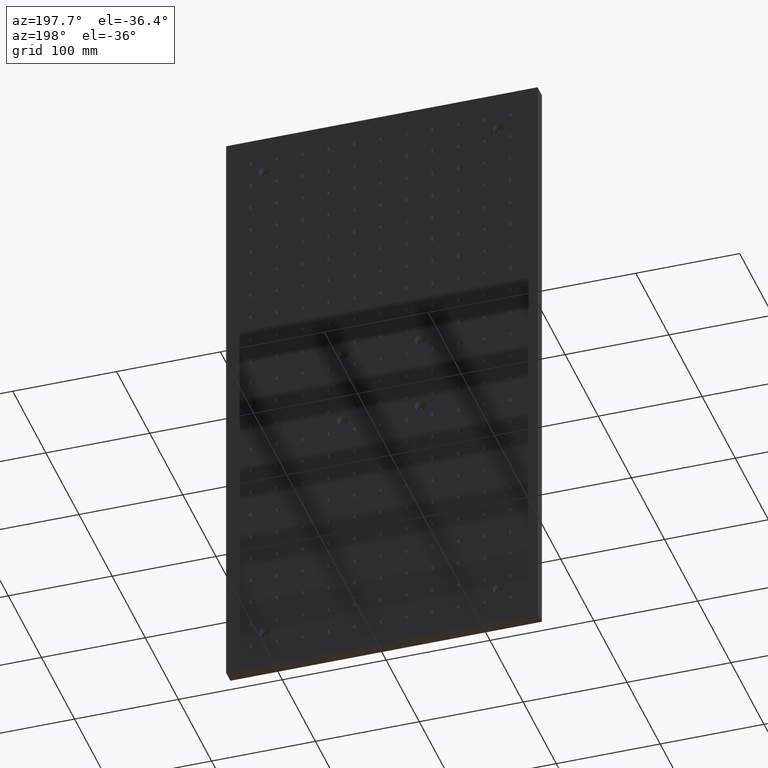
[diagram: clean part render]
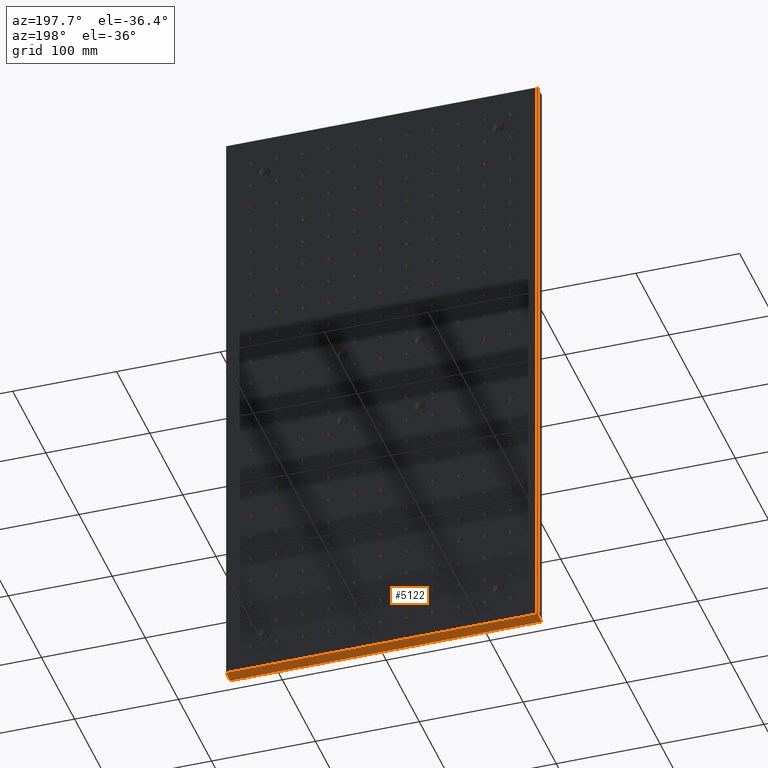
[diagram: same view with one face highlighted and labeled with its STEP entity id]
A machine part, auxiliary view. The second image highlights one B-rep face of the part: STEP entity #5122.
In plain terms, the highlighted planar face has unit normal (0, 0, 1).
Its self-contained STEP definition (entity closure, byte-faithful):
#36 = VERTEX_POINT ( 'NONE', #3815 ) ;
#378 = DIRECTION ( 'NONE',  ( 1.000000000000000000, 0.000000000000000000, -0.000000000000000000 ) ) ;
#485 = VECTOR ( 'NONE', #2688, 1000.000000000000000 ) ;
#760 = EDGE_CURVE ( 'NONE', #36, #8420, #6345, .T. ) ;
#965 = DIRECTION ( 'NONE',  ( -1.000000000000000000, -0.000000000000000000, 0.000000000000000000 ) ) ;
#1807 = FACE_OUTER_BOUND ( 'NONE', #8062, .T. ) ;
#2195 = EDGE_CURVE ( 'NONE', #8420, #3244, #4023, .T. ) ;
#2633 = LINE ( 'NONE', #3963, #8413 ) ;
#2688 = DIRECTION ( 'NONE',  ( 0.000000000000000000, 1.000000000000000000, 0.000000000000000000 ) ) ;
#2737 = ORIENTED_EDGE ( 'NONE', *, *, #760, .T. ) ;
#2858 = CARTESIAN_POINT ( 'NONE',  ( -150.0000000000000000, 0.000000000000000000, -299.9999999999999432 ) ) ;
#3244 = VERTEX_POINT ( 'NONE', #5976 ) ;
#3307 = CARTESIAN_POINT ( 'NONE',  ( -150.0000000000000000, 13.00000000000000178, -299.9999999999999432 ) ) ;
#3379 = EDGE_CURVE ( 'NONE', #8501, #3244, #4587, .T. ) ;
#3434 = EDGE_CURVE ( 'NONE', #8501, #36, #2633, .T. ) ;
#3491 = VECTOR ( 'NONE', #4158, 1000.000000000000000 ) ;
#3815 = CARTESIAN_POINT ( 'NONE',  ( 150.0000000000000000, 0.000000000000000000, -299.9999999999999432 ) ) ;
#3853 = CARTESIAN_POINT ( 'NONE',  ( -150.0000000000000000, 13.00000000000000178, -299.9999999999999432 ) ) ;
#3915 = ORIENTED_EDGE ( 'NONE', *, *, #2195, .T. ) ;
#3963 = CARTESIAN_POINT ( 'NONE',  ( 150.0000000000000000, 13.00000000000000178, -299.9999999999999432 ) ) ;
#4023 = LINE ( 'NONE', #3307, #485 ) ;
#4158 = DIRECTION ( 'NONE',  ( -1.000000000000000000, -0.000000000000000000, 0.000000000000000000 ) ) ;
#4462 = VECTOR ( 'NONE', #965, 1000.000000000000000 ) ;
#4569 = DIRECTION ( 'NONE',  ( 0.000000000000000000, 0.000000000000000000, 1.000000000000000000 ) ) ;
#4587 = LINE ( 'NONE', #7497, #4462 ) ;
#4895 = ORIENTED_EDGE ( 'NONE', *, *, #3434, .T. ) ;
#5122 = ADVANCED_FACE ( 'NONE', ( #1807 ), #7617, .F. ) ;
#5567 = CARTESIAN_POINT ( 'NONE',  ( 150.0000000000000284, 13.00000000000000178, -299.9999999999999432 ) ) ;
#5622 = DIRECTION ( 'NONE',  ( -0.000000000000000000, -1.000000000000000000, 0.000000000000000000 ) ) ;
#5976 = CARTESIAN_POINT ( 'NONE',  ( -150.0000000000000000, 13.00000000000000178, -299.9999999999999432 ) ) ;
#6345 = LINE ( 'NONE', #9306, #3491 ) ;
#7497 = CARTESIAN_POINT ( 'NONE',  ( 0.000000000000000000, 13.00000000000000178, -299.9999999999999432 ) ) ;
#7617 = PLANE ( 'NONE',  #7825 ) ;
#7825 = AXIS2_PLACEMENT_3D ( 'NONE', #3853, #4569, #378 ) ;
#8062 = EDGE_LOOP ( 'NONE', ( #3915, #8348, #4895, #2737 ) ) ;
#8348 = ORIENTED_EDGE ( 'NONE', *, *, #3379, .F. ) ;
#8413 = VECTOR ( 'NONE', #5622, 1000.000000000000000 ) ;
#8420 = VERTEX_POINT ( 'NONE', #2858 ) ;
#8501 = VERTEX_POINT ( 'NONE', #5567 ) ;
#9306 = CARTESIAN_POINT ( 'NONE',  ( -150.0000000000000000, 0.000000000000000000, -299.9999999999999432 ) ) ;